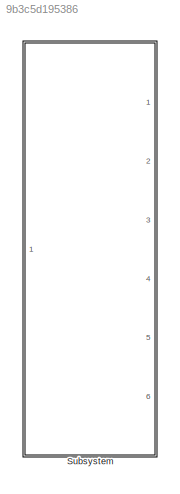
MODEL slx_9b3c5d195386
KIND library
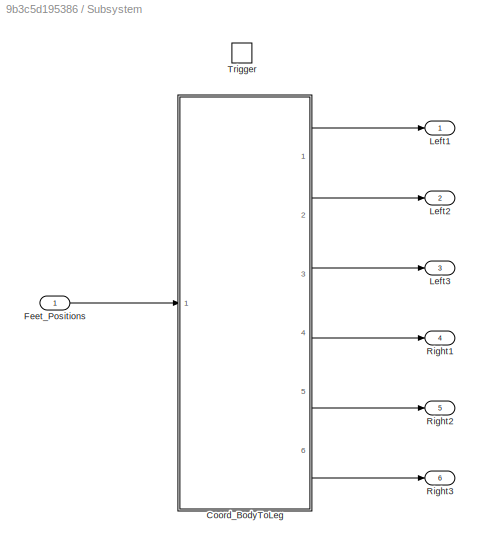
BLOCK [SubSystem] Subsystem
  Ports = [1, 6, 0, 1]
  RequestExecContextInheritance = off
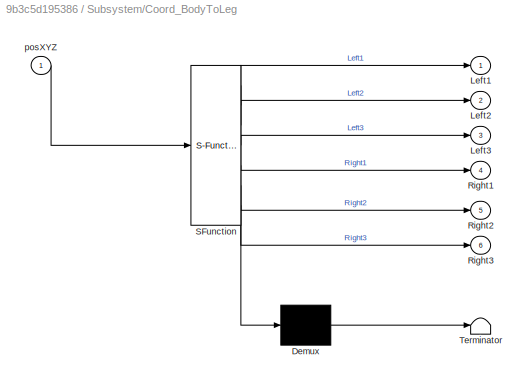
BLOCK [SubSystem] Subsystem/Coord_BodyToLeg
  ErrorFcn = Stateflow.Translate.translate
  PermitHierarchicalResolution = ExplicitOnly
  Ports = [1, 6]
  RequestExecContextInheritance = off
  SFBlockType = MATLAB Function
  TreatAsAtomicUnit = on
BLOCK [Demux] Subsystem/Coord_BodyToLeg/ Demux 
  Outputs = 1
  Ports = [1, 1]
BLOCK [S-Function] Subsystem/Coord_BodyToLeg/ SFunction 
  EnableBusSupport = on
  FunctionName = sf_sfun
  PortCounts = [1 7]
  Ports = [1, 7]
  Tag = Stateflow S-Function Coord_BodyToLeg 1
BLOCK [Terminator] Subsystem/Coord_BodyToLeg/ Terminator 
BLOCK [Outport] Subsystem/Coord_BodyToLeg/Left1
  IconDisplay = Port number
BLOCK [Outport] Subsystem/Coord_BodyToLeg/Left2
  IconDisplay = Port number
  Port = 2
BLOCK [Outport] Subsystem/Coord_BodyToLeg/Left3
  IconDisplay = Port number
  Port = 3
BLOCK [Outport] Subsystem/Coord_BodyToLeg/Right1
  IconDisplay = Port number
  Port = 4
BLOCK [Outport] Subsystem/Coord_BodyToLeg/Right2
  IconDisplay = Port number
  Port = 5
BLOCK [Outport] Subsystem/Coord_BodyToLeg/Right3
  IconDisplay = Port number
  Port = 6
BLOCK [Inport] Subsystem/Coord_BodyToLeg/posXYZ
  IconDisplay = Port number
BLOCK [Inport] Subsystem/Feet_Positions
  IconDisplay = Port number
BLOCK [Outport] Subsystem/Left1
  IconDisplay = Port number
BLOCK [Outport] Subsystem/Left2
  IconDisplay = Port number
  Port = 2
BLOCK [Outport] Subsystem/Left3
  IconDisplay = Port number
  Port = 3
BLOCK [Outport] Subsystem/Right1
  IconDisplay = Port number
  Port = 4
BLOCK [Outport] Subsystem/Right2
  IconDisplay = Port number
  Port = 5
BLOCK [Outport] Subsystem/Right3
  IconDisplay = Port number
  Port = 6
BLOCK [TriggerPort] Subsystem/Trigger
  PortDimensions = 1
  Ports = []
  StatesWhenEnabling = held
LINE Subsystem/Coord_BodyToLeg:1 -> Subsystem/Left1:1
LINE Subsystem/Coord_BodyToLeg:2 -> Subsystem/Left2:1
LINE Subsystem/Coord_BodyToLeg:3 -> Subsystem/Left3:1
LINE Subsystem/Coord_BodyToLeg:4 -> Subsystem/Right1:1
LINE Subsystem/Coord_BodyToLeg:5 -> Subsystem/Right2:1
LINE Subsystem/Coord_BodyToLeg:6 -> Subsystem/Right3:1
LINE Subsystem/Feet_Positions:1 -> Subsystem/Coord_BodyToLeg:1
CHART Subsystem/Coord_BodyToLeg states=1 transitions=1
  STATE_LABEL 'eML_blk_kernel()'
  STATE_LABEL "SCRIPT:\nfunction [Left1,Left2,Left3,Right1,Right2,Right3] = fcn(posXYZ)\n\n%Syntax\n%x1 ... x6\n%y1 ... y6\n%z1 ... z6\n\nposXYZ=posXYZ';%x y z\nout=zeros(3,6);\nposXY=posXYZ(1:2,:);\n\n%Offset measured from the origin of the main body\n%Ordning L1 L2 L3 R1 R2 R3\noffset=zeros(2,6);\noffset(1,:)=[-60.91 -103.5 -60.91 60.91 103.5 60.91];%x offset\noffset(2,:)=[121.91 0 -121.91 121.91 0 -121.91];%y offset\n\n% Rotat...<+545ch>"
